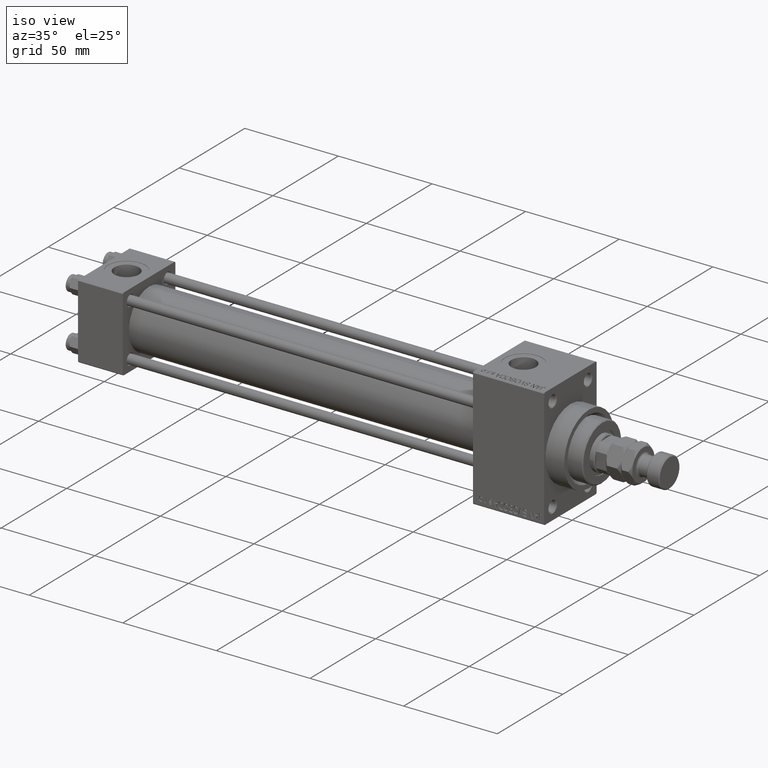
[diagram: clean part render]
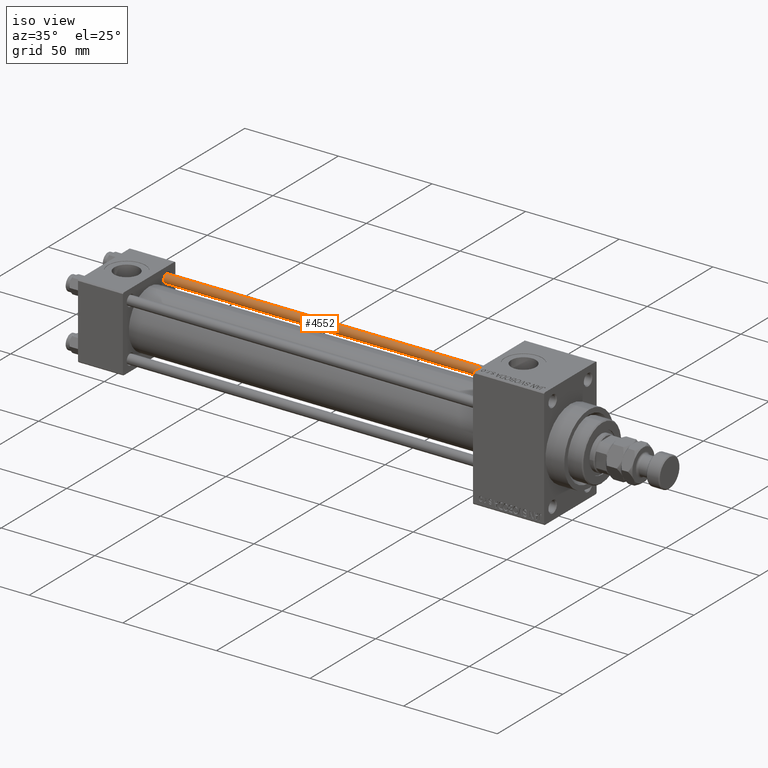
[diagram: same view with one face highlighted and labeled with its STEP entity id]
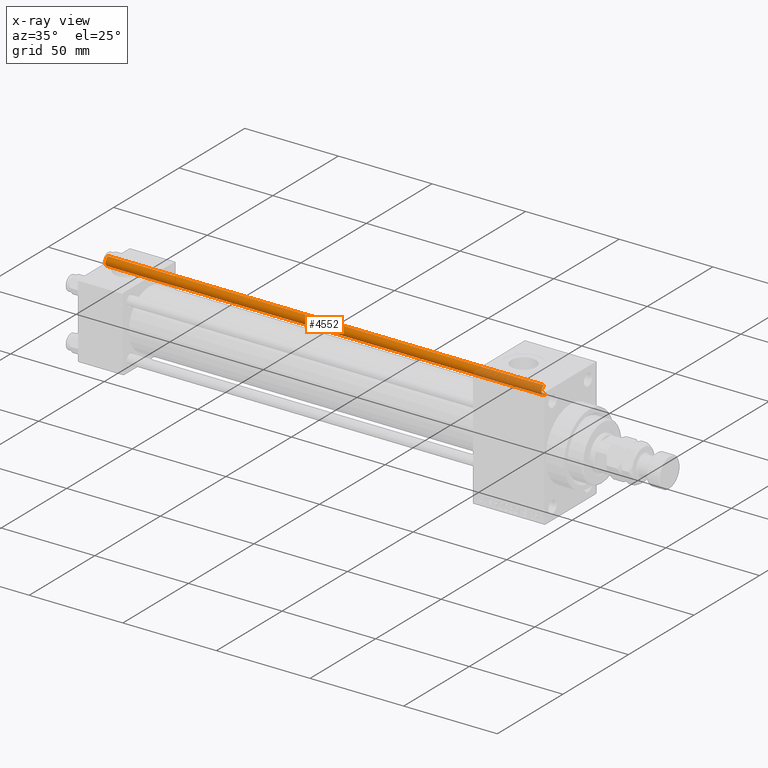
[diagram: x-ray of the same camera — body ghosted, the highlighted face saturated]
A machine part, iso view. The second image highlights one B-rep face of the part: STEP entity #4552.
The next image is the same camera in x-ray: the body ghosted, the highlighted face saturated — about 15% of this face is hidden behind the body in this view.
In plain terms, the highlighted cylindrical surface (edge-blend (fillet) strip) has radius 2.5 mm, axis along (-1, -0, 0).
Its self-contained STEP definition (entity closure, byte-faithful):
#811 = CARTESIAN_POINT ( 'NONE',  ( 2.500000000000000000, 3.061616997868383141E-16, 233.5000000000000284 ) ) ;
#955 = LINE ( 'NONE', #32232, #44775 ) ;
#2583 = AXIS2_PLACEMENT_3D ( 'NONE', #15346, #11761, #27395 ) ;
#4552 = ADVANCED_FACE ( 'NONE', ( #39637 ), #5261, .T. ) ;
#5261 = CYLINDRICAL_SURFACE ( 'NONE', #34847, 2.500000000000000000 ) ;
#5797 = ORIENTED_EDGE ( 'NONE', *, *, #9485, .T. ) ;
#5931 = VERTEX_POINT ( 'NONE', #18179 ) ;
#6969 = VECTOR ( 'NONE', #48574, 1000.000000000000000 ) ;
#7788 = VERTEX_POINT ( 'NONE', #11655 ) ;
#8851 = DIRECTION ( 'NONE',  ( -0.000000000000000000, -0.000000000000000000, -1.000000000000000000 ) ) ;
#9485 = EDGE_CURVE ( 'NONE', #10585, #7788, #38282, .T. ) ;
#10585 = VERTEX_POINT ( 'NONE', #811 ) ;
#11655 = CARTESIAN_POINT ( 'NONE',  ( -2.500000000000000000, 0.000000000000000000, 233.5000000000000284 ) ) ;
#11761 = DIRECTION ( 'NONE',  ( -0.000000000000000000, -0.000000000000000000, 1.000000000000000000 ) ) ;
#14065 = EDGE_LOOP ( 'NONE', ( #27622, #5797, #43158, #15598 ) ) ;
#15346 = CARTESIAN_POINT ( 'NONE',  ( 0.000000000000000000, 0.000000000000000000, 0.5000000000000281997 ) ) ;
#15598 = ORIENTED_EDGE ( 'NONE', *, *, #20012, .T. ) ;
#18179 = CARTESIAN_POINT ( 'NONE',  ( 2.500000000000000000, 3.061616997868383141E-16, 0.5000000000000281997 ) ) ;
#18610 = VERTEX_POINT ( 'NONE', #28532 ) ;
#20012 = EDGE_CURVE ( 'NONE', #18610, #5931, #48455, .T. ) ;
#27317 = DIRECTION ( 'NONE',  ( 0.000000000000000000, 0.000000000000000000, -1.000000000000000000 ) ) ;
#27395 = DIRECTION ( 'NONE',  ( 1.000000000000000000, 0.000000000000000000, 0.000000000000000000 ) ) ;
#27622 = ORIENTED_EDGE ( 'NONE', *, *, #33686, .F. ) ;
#28532 = CARTESIAN_POINT ( 'NONE',  ( -2.500000000000000000, 0.000000000000000000, 0.5000000000000281997 ) ) ;
#29093 = CARTESIAN_POINT ( 'NONE',  ( 0.000000000000000000, 0.000000000000000000, 234.0000000000000000 ) ) ;
#32232 = CARTESIAN_POINT ( 'NONE',  ( -2.500000000000000000, 0.000000000000000000, 234.0000000000000000 ) ) ;
#33686 = EDGE_CURVE ( 'NONE', #10585, #5931, #36774, .T. ) ;
#34847 = AXIS2_PLACEMENT_3D ( 'NONE', #29093, #8851, #36025 ) ;
#35265 = DIRECTION ( 'NONE',  ( 1.000000000000000000, 0.000000000000000000, 0.000000000000000000 ) ) ;
#36003 = CARTESIAN_POINT ( 'NONE',  ( 2.500000000000000000, 3.061616997868383141E-16, 234.0000000000000000 ) ) ;
#36025 = DIRECTION ( 'NONE',  ( -1.000000000000000000, 0.000000000000000000, 0.000000000000000000 ) ) ;
#36774 = LINE ( 'NONE', #36003, #6969 ) ;
#36860 = DIRECTION ( 'NONE',  ( -0.000000000000000000, -0.000000000000000000, -1.000000000000000000 ) ) ;
#37686 = EDGE_CURVE ( 'NONE', #7788, #18610, #955, .T. ) ;
#38282 = CIRCLE ( 'NONE', #42386, 2.500000000000000000 ) ;
#39637 = FACE_OUTER_BOUND ( 'NONE', #14065, .T. ) ;
#42386 = AXIS2_PLACEMENT_3D ( 'NONE', #47307, #27317, #35265 ) ;
#43158 = ORIENTED_EDGE ( 'NONE', *, *, #37686, .T. ) ;
#44775 = VECTOR ( 'NONE', #36860, 1000.000000000000000 ) ;
#47307 = CARTESIAN_POINT ( 'NONE',  ( 0.000000000000000000, 0.000000000000000000, 233.5000000000000284 ) ) ;
#48455 = CIRCLE ( 'NONE', #2583, 2.500000000000000000 ) ;
#48574 = DIRECTION ( 'NONE',  ( -0.000000000000000000, -0.000000000000000000, -1.000000000000000000 ) ) ;